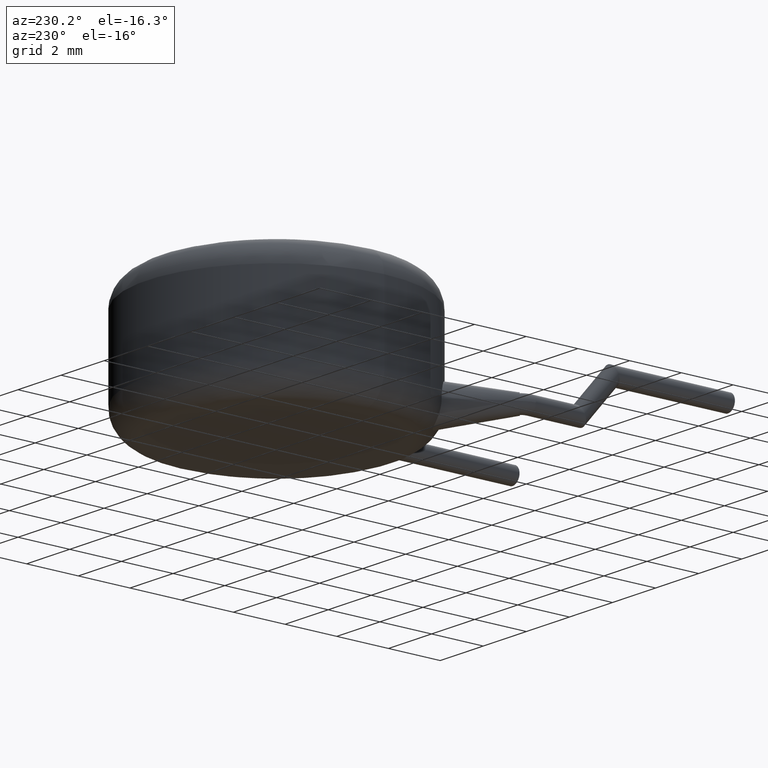
[diagram: clean part render]
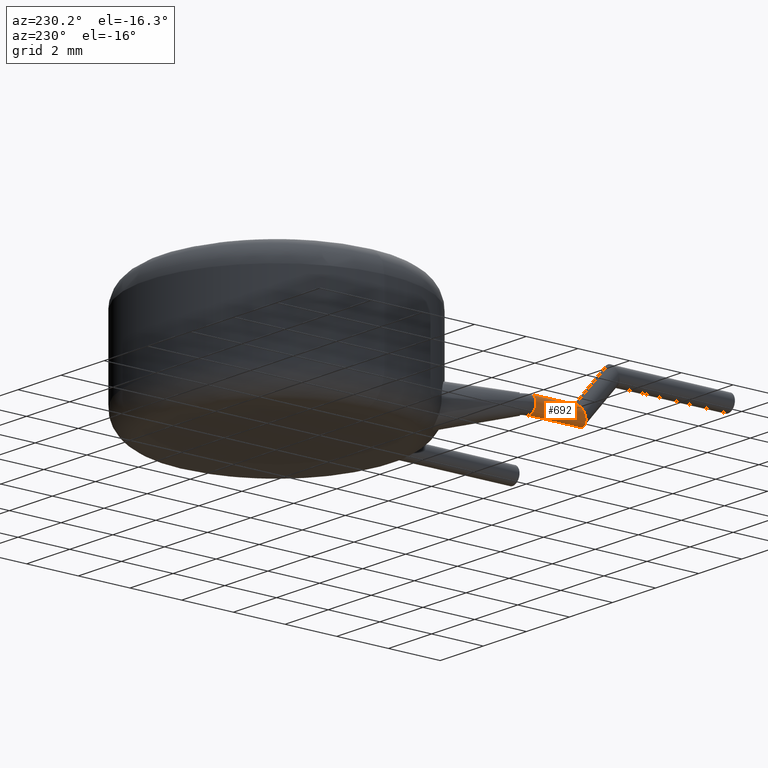
[diagram: same view with one face highlighted and labeled with its STEP entity id]
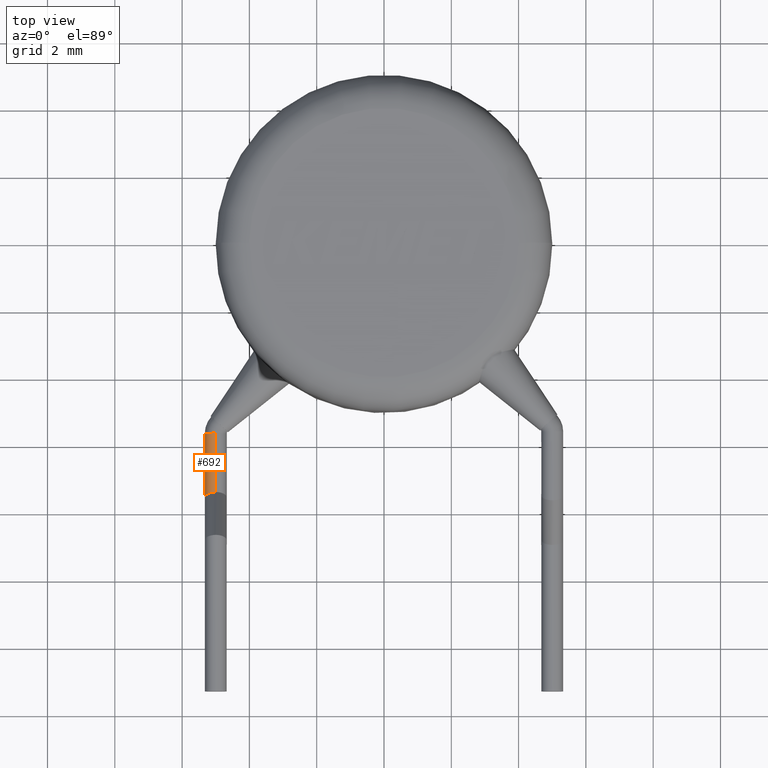
[diagram: same view with one face highlighted and labeled with its STEP entity id]
A machine part, auxiliary view. The second image highlights one B-rep face of the part: STEP entity #692.
A second angle (top view) of the same face is appended — the face is thin or edge-on in the first view.
In plain terms, the highlighted cylindrical surface (edge-blend (fillet) strip) has radius 0.325 mm, axis along (0, -1, 0).
Its self-contained STEP definition (entity closure, byte-faithful):
#35 = DIRECTION ( 'NONE',  ( 0.0000000000000000000, -1.000000000000000000, 0.0000000000000000000 ) ) ;
#39 = CYLINDRICAL_SURFACE ( 'NONE', #3252, 0.3249999999999997900 ) ;
#174 = ORIENTED_EDGE ( 'NONE', *, *, #1323, .F. ) ;
#182 = CARTESIAN_POINT ( 'NONE',  ( -5.000000000000000900, -7.351595613105617500, 1.324999999999999700 ) ) ;
#227 = AXIS2_PLACEMENT_3D ( 'NONE', #3881, #3237, #3580 ) ;
#537 = EDGE_CURVE ( 'NONE', #3286, #2452, #3180, .T. ) ;
#593 = ORIENTED_EDGE ( 'NONE', *, *, #1782, .F. ) ;
#692 = ADVANCED_FACE ( 'NONE', ( #3272 ), #39, .T. ) ;
#738 = CARTESIAN_POINT ( 'NONE',  ( -5.649999999999996800, -7.351595613105617500, 1.324999999999998000 ) ) ;
#911 = VECTOR ( 'NONE', #2350, 1000.000000000000000 ) ;
#984 = CIRCLE ( 'NONE', #3568, 0.3249999999999997900 ) ;
#1082 = CARTESIAN_POINT ( 'NONE',  ( -5.000000000000000900, -5.600000000000003200, 1.000000000000000000 ) ) ;
#1134 = VERTEX_POINT ( 'NONE', #2454 ) ;
#1323 = EDGE_CURVE ( 'NONE', #3286, #2000, #3845, .T. ) ;
#1362 =( BOUNDED_CURVE ( )  B_SPLINE_CURVE ( 3, ( #3834, #738, #2998, #3877 ),
 .UNSPECIFIED., .F., .F. ) 
 B_SPLINE_CURVE_WITH_KNOTS ( ( 4, 4 ),
 ( 2.668805347656627700E-015, 3.141592653589790500 ),
 .UNSPECIFIED. ) 
 CURVE ( )  GEOMETRIC_REPRESENTATION_ITEM ( )  RATIONAL_B_SPLINE_CURVE ( ( 1.000000000000000000, 0.3333333333333351500, 0.3333333333333351500, 1.000000000000000000 ) ) 
 REPRESENTATION_ITEM ( '' )  );
#1602 = CARTESIAN_POINT ( 'NONE',  ( -5.325000000000001100, -5.600000000000002300, 1.000000000000000000 ) ) ;
#1692 = ORIENTED_EDGE ( 'NONE', *, *, #537, .T. ) ;
#1782 = EDGE_CURVE ( 'NONE', #2000, #2493, #1362, .T. ) ;
#1901 = LINE ( 'NONE', #2695, #911 ) ;
#2000 = VERTEX_POINT ( 'NONE', #182 ) ;
#2350 = DIRECTION ( 'NONE',  ( 0.0000000000000000000, -1.000000000000000000, 0.0000000000000000000 ) ) ;
#2452 = VERTEX_POINT ( 'NONE', #1602 ) ;
#2454 = CARTESIAN_POINT ( 'NONE',  ( -5.000000000000000900, -5.600000000000003200, 0.6750000000000002700 ) ) ;
#2490 = ORIENTED_EDGE ( 'NONE', *, *, #3307, .T. ) ;
#2493 = VERTEX_POINT ( 'NONE', #2674 ) ;
#2496 = ORIENTED_EDGE ( 'NONE', *, *, #4142, .T. ) ;
#2674 = CARTESIAN_POINT ( 'NONE',  ( -5.000000000000000900, -7.648404386894382500, 0.6750000000000002700 ) ) ;
#2695 = CARTESIAN_POINT ( 'NONE',  ( -5.000000000000000900, -5.600000000000003200, 0.6750000000000002700 ) ) ;
#2876 = EDGE_LOOP ( 'NONE', ( #174, #1692, #2490, #2496, #593 ) ) ;
#2947 = CARTESIAN_POINT ( 'NONE',  ( -5.000000000000000900, -5.600000000000003200, 1.000000000000000000 ) ) ;
#2985 = DIRECTION ( 'NONE',  ( 0.0000000000000000000, 0.0000000000000000000, -1.000000000000000000 ) ) ;
#2998 = CARTESIAN_POINT ( 'NONE',  ( -5.649999999999996800, -7.648404386894381600, 0.6750000000000018200 ) ) ;
#3031 = CARTESIAN_POINT ( 'NONE',  ( -5.000000000000000900, -5.600000000000003200, 1.324999999999999700 ) ) ;
#3098 = CARTESIAN_POINT ( 'NONE',  ( -5.000000000000000900, -5.600000000000003200, 1.324999999999999700 ) ) ;
#3124 = VECTOR ( 'NONE', #3162, 1000.000000000000000 ) ;
#3162 = DIRECTION ( 'NONE',  ( 0.0000000000000000000, -1.000000000000000000, 0.0000000000000000000 ) ) ;
#3180 = CIRCLE ( 'NONE', #227, 0.3249999999999997900 ) ;
#3237 = DIRECTION ( 'NONE',  ( -1.110223024625156300E-015, -1.000000000000000000, 0.0000000000000000000 ) ) ;
#3252 = AXIS2_PLACEMENT_3D ( 'NONE', #2947, #35, #2985 ) ;
#3272 = FACE_OUTER_BOUND ( 'NONE', #2876, .T. ) ;
#3286 = VERTEX_POINT ( 'NONE', #3031 ) ;
#3307 = EDGE_CURVE ( 'NONE', #2452, #1134, #984, .T. ) ;
#3368 = DIRECTION ( 'NONE',  ( 1.000000000000000000, 0.0000000000000000000, 0.0000000000000000000 ) ) ;
#3381 = DIRECTION ( 'NONE',  ( -1.110223024625156300E-015, -1.000000000000000000, 0.0000000000000000000 ) ) ;
#3568 = AXIS2_PLACEMENT_3D ( 'NONE', #1082, #3381, #3368 ) ;
#3580 = DIRECTION ( 'NONE',  ( 1.000000000000000000, 0.0000000000000000000, 0.0000000000000000000 ) ) ;
#3834 = CARTESIAN_POINT ( 'NONE',  ( -5.000000000000000900, -7.351595613105617500, 1.324999999999999700 ) ) ;
#3845 = LINE ( 'NONE', #3098, #3124 ) ;
#3877 = CARTESIAN_POINT ( 'NONE',  ( -5.000000000000000900, -7.648404386894382500, 0.6750000000000002700 ) ) ;
#3881 = CARTESIAN_POINT ( 'NONE',  ( -5.000000000000000900, -5.600000000000003200, 1.000000000000000000 ) ) ;
#4142 = EDGE_CURVE ( 'NONE', #1134, #2493, #1901, .T. ) ;